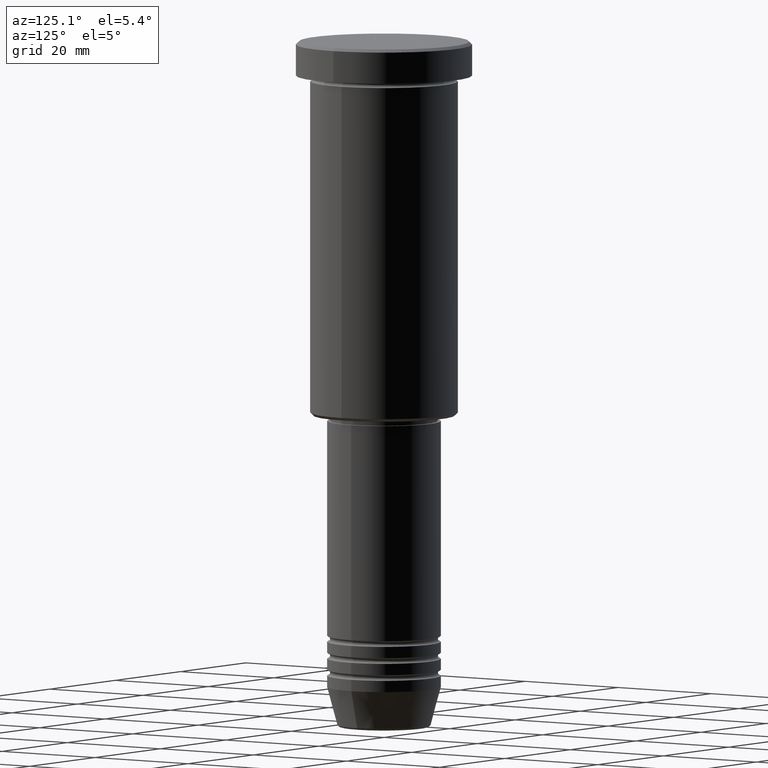
[diagram: clean part render]
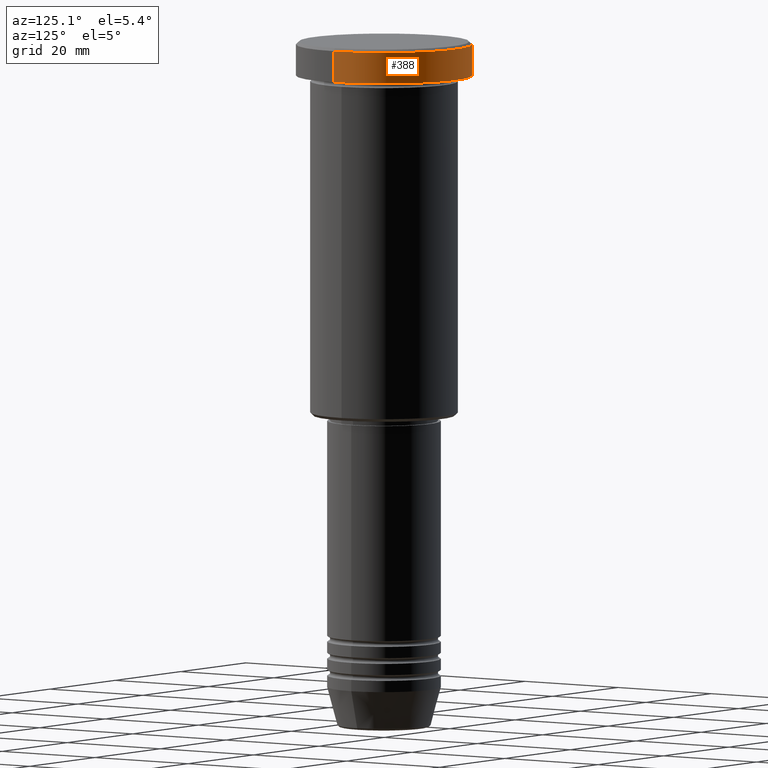
[diagram: same view with one face highlighted and labeled with its STEP entity id]
A machine part, auxiliary view. The second image highlights one B-rep face of the part: STEP entity #388.
In plain terms, the highlighted cylindrical surface (partial cylindrical patch) has radius 15.5 mm, axis along (-0, -0, 1).
Its self-contained STEP definition (entity closure, byte-faithful):
#32 = VERTEX_POINT ( 'NONE', #608 ) ;
#78 = DIRECTION ( 'NONE',  ( 1.000000000000000000, 0.000000000000000000, 0.000000000000000000 ) ) ;
#108 = ORIENTED_EDGE ( 'NONE', *, *, #508, .T. ) ;
#175 = VECTOR ( 'NONE', #621, 1000.000000000000000 ) ;
#207 = DIRECTION ( 'NONE',  ( 1.000000000000000000, 0.000000000000000000, 0.000000000000000000 ) ) ;
#216 = EDGE_LOOP ( 'NONE', ( #845, #108, #1129, #779 ) ) ;
#238 = CARTESIAN_POINT ( 'NONE',  ( 15.50000000000000000, 0.000000000000000000, 0.000000000000000000 ) ) ;
#350 = AXIS2_PLACEMENT_3D ( 'NONE', #962, #1031, #207 ) ;
#376 = CARTESIAN_POINT ( 'NONE',  ( 0.000000000000000000, 0.000000000000000000, -0.4999999999999848455 ) ) ;
#384 = VERTEX_POINT ( 'NONE', #778 ) ;
#388 = ADVANCED_FACE ( 'NONE', ( #407 ), #864, .T. ) ;
#392 = VECTOR ( 'NONE', #994, 1000.000000000000000 ) ;
#407 = FACE_OUTER_BOUND ( 'NONE', #216, .T. ) ;
#425 = CARTESIAN_POINT ( 'NONE',  ( 15.50000000000000000, 0.000000000000000000, -5.999999999999995559 ) ) ;
#426 = CARTESIAN_POINT ( 'NONE',  ( -15.50000000000000000, 1.898202538678397557E-15, 0.000000000000000000 ) ) ;
#456 = CIRCLE ( 'NONE', #1133, 15.50000000000000000 ) ;
#489 = VERTEX_POINT ( 'NONE', #699 ) ;
#508 = EDGE_CURVE ( 'NONE', #489, #32, #1068, .T. ) ;
#603 = EDGE_CURVE ( 'NONE', #960, #384, #1164, .T. ) ;
#608 = CARTESIAN_POINT ( 'NONE',  ( -15.50000000000000000, 1.898202538678397557E-15, -0.4999999999999848455 ) ) ;
#621 = DIRECTION ( 'NONE',  ( -0.000000000000000000, -0.000000000000000000, 1.000000000000000000 ) ) ;
#641 = DIRECTION ( 'NONE',  ( 0.000000000000000000, 0.000000000000000000, -1.000000000000000000 ) ) ;
#656 = CARTESIAN_POINT ( 'NONE',  ( 0.000000000000000000, 0.000000000000000000, -5.999999999999995559 ) ) ;
#687 = EDGE_CURVE ( 'NONE', #32, #384, #456, .T. ) ;
#699 = CARTESIAN_POINT ( 'NONE',  ( -15.50000000000000000, 1.898202538678397557E-15, -5.999999999999995559 ) ) ;
#778 = CARTESIAN_POINT ( 'NONE',  ( 15.50000000000000000, 0.000000000000000000, -0.4999999999999848455 ) ) ;
#779 = ORIENTED_EDGE ( 'NONE', *, *, #603, .F. ) ;
#836 = CIRCLE ( 'NONE', #1007, 15.50000000000000000 ) ;
#845 = ORIENTED_EDGE ( 'NONE', *, *, #1181, .T. ) ;
#864 = CYLINDRICAL_SURFACE ( 'NONE', #350, 15.50000000000000000 ) ;
#913 = DIRECTION ( 'NONE',  ( 1.000000000000000000, 0.000000000000000000, 0.000000000000000000 ) ) ;
#924 = DIRECTION ( 'NONE',  ( -0.000000000000000000, -0.000000000000000000, 1.000000000000000000 ) ) ;
#960 = VERTEX_POINT ( 'NONE', #425 ) ;
#962 = CARTESIAN_POINT ( 'NONE',  ( 0.000000000000000000, 0.000000000000000000, 0.000000000000000000 ) ) ;
#994 = DIRECTION ( 'NONE',  ( -0.000000000000000000, -0.000000000000000000, 1.000000000000000000 ) ) ;
#1007 = AXIS2_PLACEMENT_3D ( 'NONE', #656, #924, #78 ) ;
#1031 = DIRECTION ( 'NONE',  ( -0.000000000000000000, -0.000000000000000000, 1.000000000000000000 ) ) ;
#1068 = LINE ( 'NONE', #426, #175 ) ;
#1129 = ORIENTED_EDGE ( 'NONE', *, *, #687, .T. ) ;
#1133 = AXIS2_PLACEMENT_3D ( 'NONE', #376, #641, #913 ) ;
#1164 = LINE ( 'NONE', #238, #392 ) ;
#1181 = EDGE_CURVE ( 'NONE', #960, #489, #836, .T. ) ;